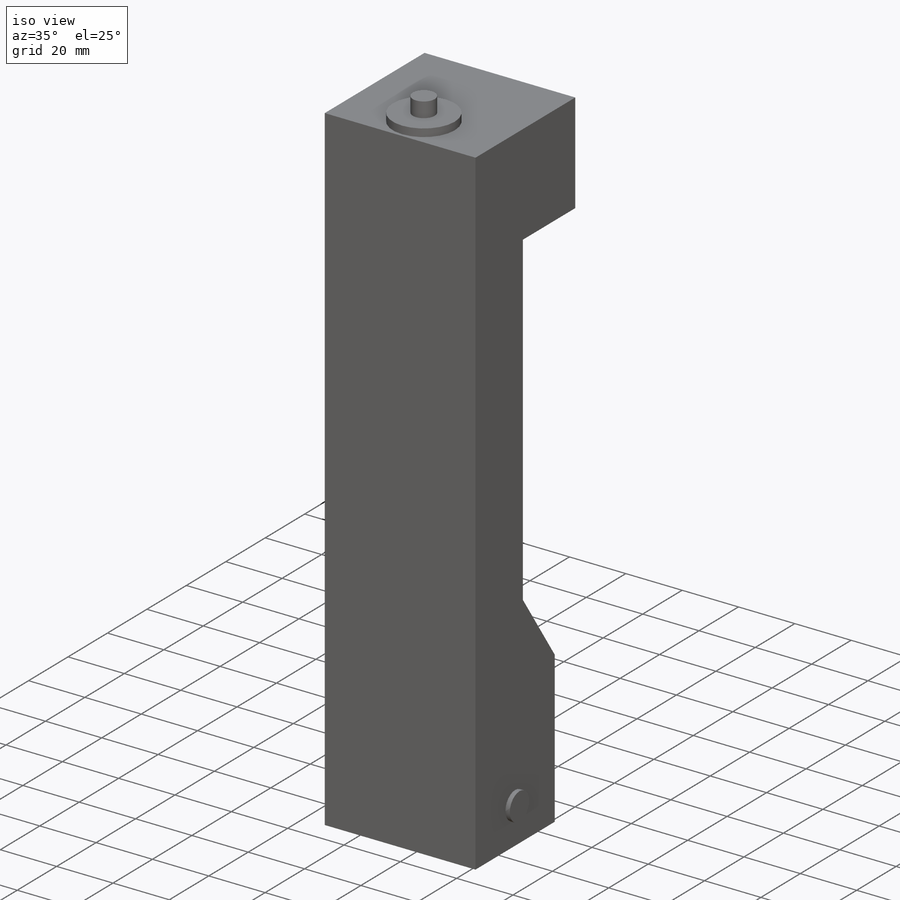
[diagram: iso view]
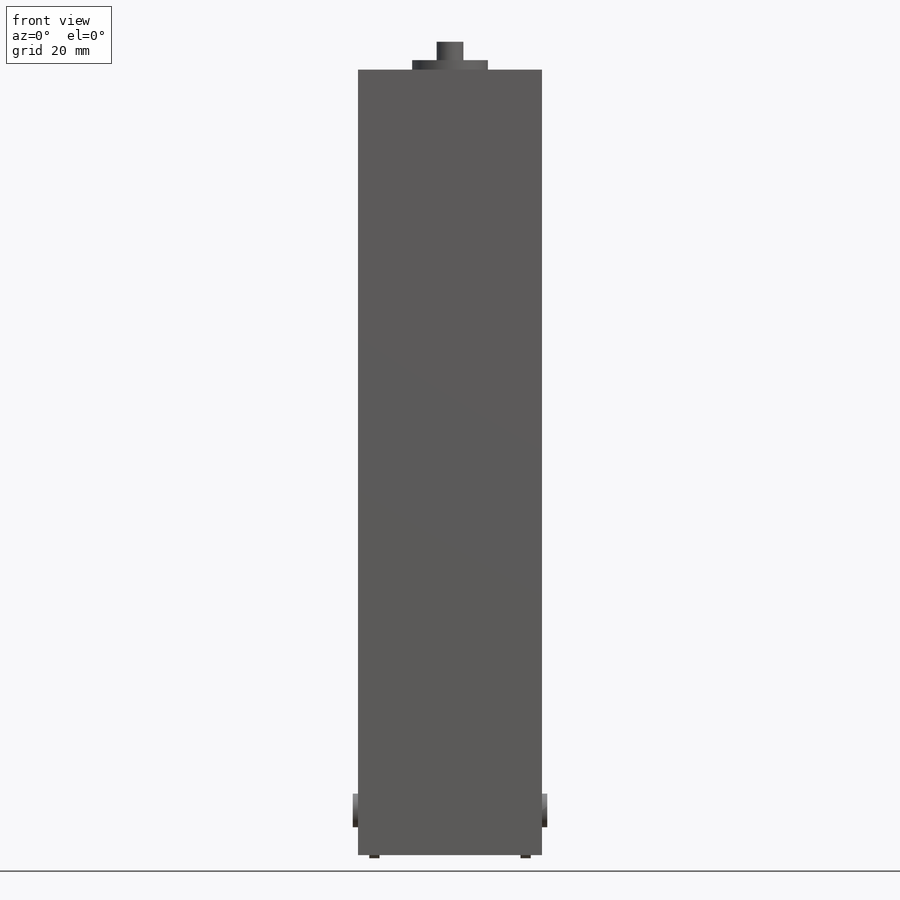
[diagram: front view]
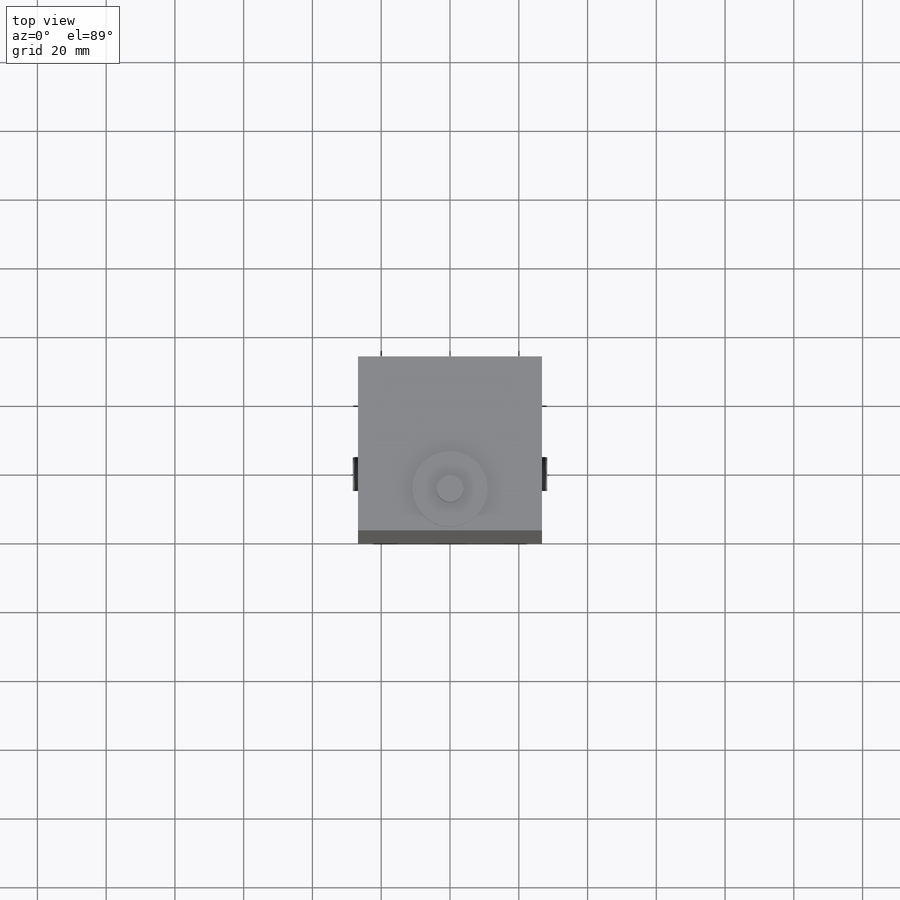
[diagram: top view]
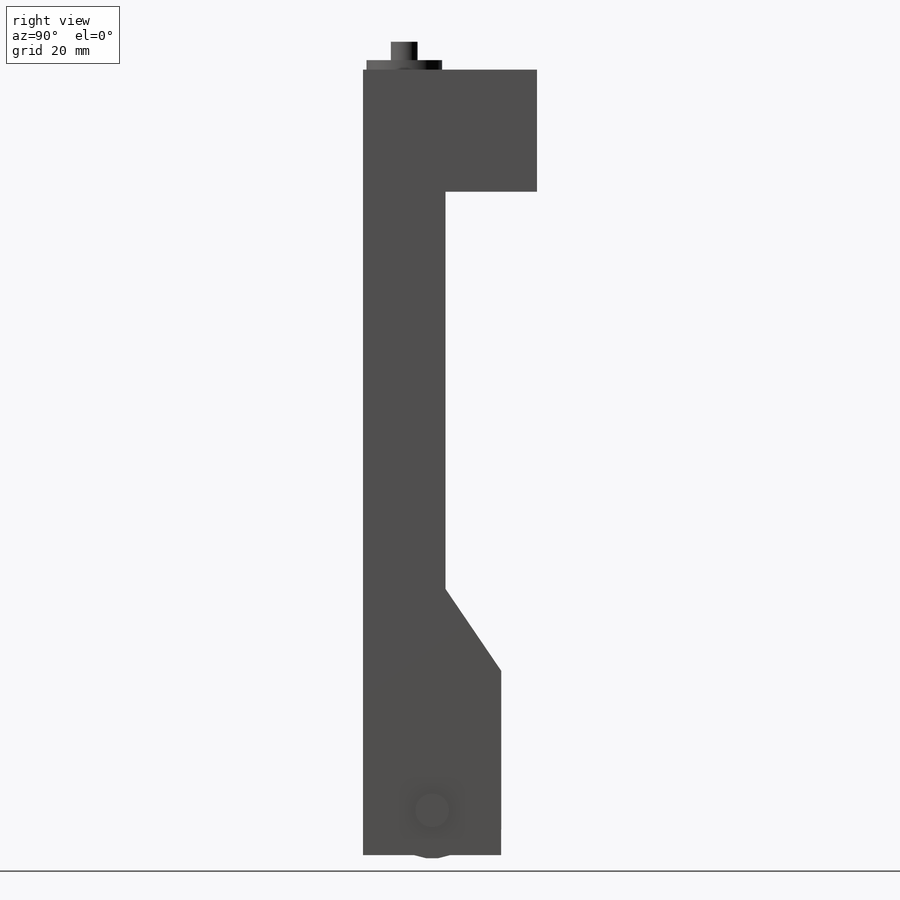
[diagram: right view]
SOLIDWORKS PART (.sldprt)
format: sldprt  version: not decoded by parser v0  size: 390,144 bytes
history: native  units: mm
features: sketch x15, extrude x15, mirror x4, plane x3, material x1, chamfer x1 (+11 scaffold rows collapsed)
feature tree (50):
  scaffold x11  (default folders/planes/origin — collapsed)
  material  "Material <not specified>"
  plane  "Plane1"  Offset=13mm
  sketch  "Sketch1"  dims[D1=41.0mm D2=40.2mm D3=5.6mm]
  extrude  "Boss-Extrude1"  Depth=61.1mm
  sketch  "Sketch2"  dims[D1=28.0mm D2=13.0mm]
  extrude  "Boss-Extrude2"  Depth=3mm
  sketch  "Sketch3"  dims[D1=9.8mm]
  extrude  "Boss-Extrude3"  Depth=4.8mm
  plane  "Plane3"
  chamfer  "Chamfer1"  Distance=7.5mm
  mirror  "Mirror5"
  sketch  "Sketch4"  dims[D1=32.9mm]
  extrude  "Boss-Extrude4"  Depth=1.5mm
  mirror  "Mirror1"
  sketch  "Sketch6"  dims[D1=25.0mm D2=10.0mm D3=24.0mm D4=200.0mm]
  extrude  "Boss-Extrude5"  Depth=4.7625mm
  mirror  "Mirror2"
  plane  "Plane2"  Offset=0.25mm
  sketch  "Sketch7"  dims[D1=35.6mm D2=50.6mm]
  extrude  "Boss-Extrude6"  Depth=35.5mm
  sketch  "Sketch9"  dims[D1=0.25mm D2=29.5mm]
  extrude  "Boss-Extrude7"  [1 undecoded]
  mirror  "Mirror3"
  sketch  "Sketch10"  dims[D2=22.0mm D1=12.0mm]
  extrude  "Boss-Extrude8"  Depth=2.75mm
  sketch  "Sketch11"  dims[D1=7.8mm]
  extrude  "Boss-Extrude9"  Depth=5.35mm
  sketch  "Sketch12"
  extrude  "Boss-Extrude10"  [1 undecoded]
  sketch  "Sketch13"
  extrude  "Boss-Extrude11"  [1 undecoded]
  sketch  "Sketch14"
  extrude  "Boss-Extrude12"  [1 undecoded]
  sketch  "Sketch15"
  extrude  "Boss-Extrude13"  Depth=10mm
  sketch  "Sketch16"
  extrude  "Boss-Extrude14"  Depth=10mm
  sketch  "Sketch17"  dims[D1=~40.184191mm D2=53.525mm]
  extrude  "Boss-Extrude15"  Depth=44mm
decode coverage: 22 of 35 modeling features carry decoded parameters
note: ~ marks probable driven/reference dimensions
note: 4 parameter values undecoded
summary: no parameter record found for 4 features
note: suppression state not decoded; provenance and decode notes live in map.json
